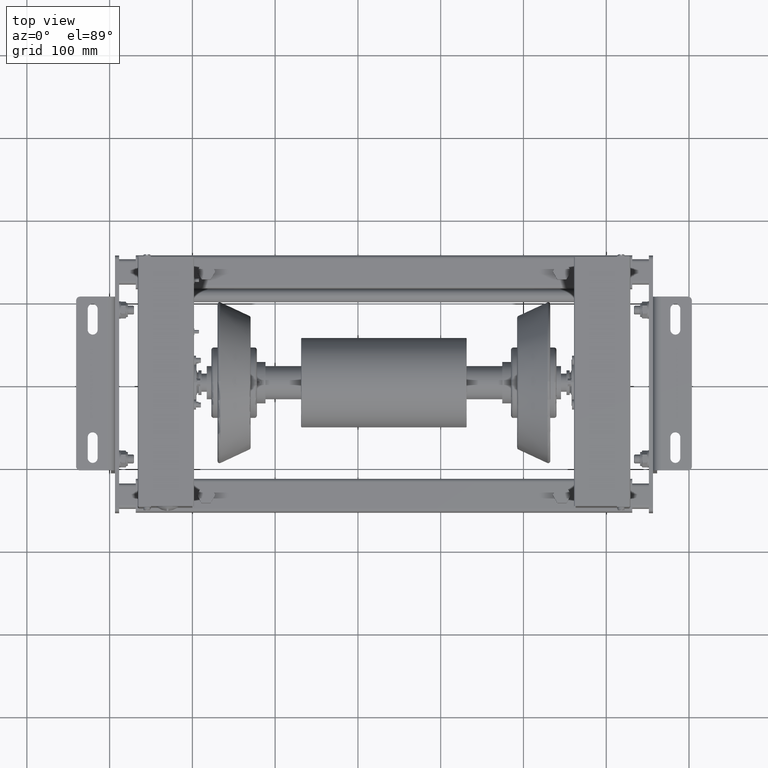
[diagram: clean part render]
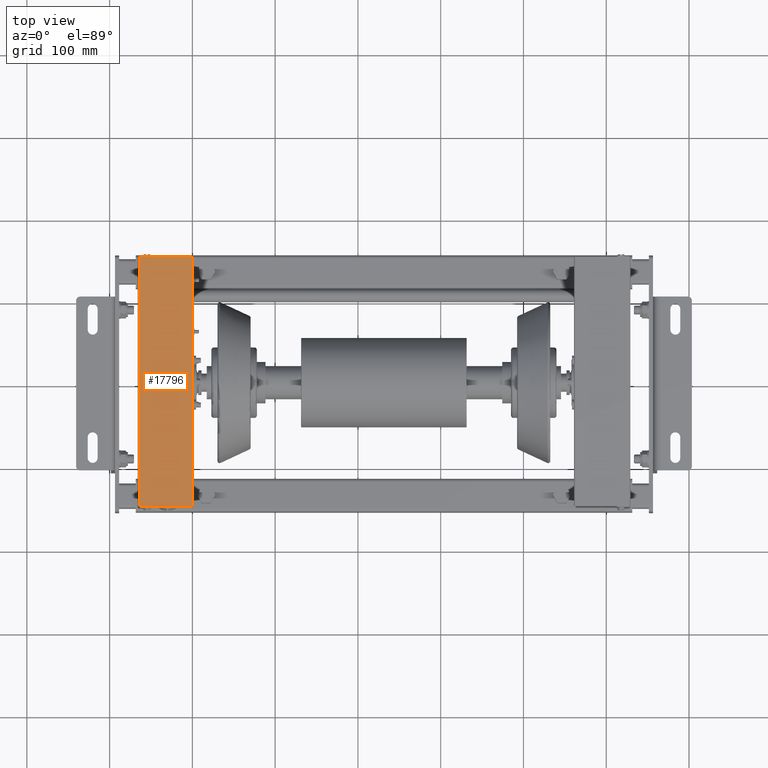
[diagram: same view with one face highlighted and labeled with its STEP entity id]
A machine part, top view. The second image highlights one B-rep face of the part: STEP entity #17796.
In plain terms, the highlighted planar face has unit normal (0, 0, 1).
Its self-contained STEP definition (entity closure, byte-faithful):
#17132=CARTESIAN_POINT('',(-90.500000000000000,86.500000000000000,65.500000000000000));
#17133=VERTEX_POINT('',#17132);
#17141=CARTESIAN_POINT('',(-90.500000000000000,86.500000000000000,1.500000000000000));
#17142=VERTEX_POINT('',#17141);
#17143=CARTESIAN_POINT('',(-90.500000000000000,86.500000000000000,1.500000000000000));
#17144=DIRECTION('',(0.0,0.0,1.0));
#17145=VECTOR('',#17144,64.0);
#17146=LINE('',#17143,#17145);
#17147=EDGE_CURVE('',#17142,#17133,#17146,.T.);
#17302=CARTESIAN_POINT('',(210.500000000000110,86.499999999999829,1.500000000000000));
#17303=VERTEX_POINT('',#17302);
#17311=CARTESIAN_POINT('',(210.500000000000110,86.499999999999829,65.500000000000000));
#17312=VERTEX_POINT('',#17311);
#17313=CARTESIAN_POINT('',(210.500000000000110,86.499999999999829,1.500000000000000));
#17314=DIRECTION('',(0.0,0.0,1.0));
#17315=VECTOR('',#17314,64.0);
#17316=LINE('',#17313,#17315);
#17317=EDGE_CURVE('',#17303,#17312,#17316,.T.);
#17692=CARTESIAN_POINT('',(-90.500000000000000,86.500000000000000,1.500000000000000));
#17693=DIRECTION('',(1.0,0.0,0.0));
#17694=VECTOR('',#17693,301.000000000000110);
#17695=LINE('',#17692,#17694);
#17696=EDGE_CURVE('',#17142,#17303,#17695,.T.);
#17780=CARTESIAN_POINT('',(-90.500000000000000,86.500000000000000,-0.500000000000000));
#17781=DIRECTION('',(0.0,1.0,0.0));
#17782=DIRECTION('',(0.0,0.0,1.0));
#17783=AXIS2_PLACEMENT_3D('',#17780,#17781,#17782);
#17784=PLANE('',#17783);
#17785=ORIENTED_EDGE('',*,*,#17696,.F.);
#17786=ORIENTED_EDGE('',*,*,#17147,.T.);
#17787=CARTESIAN_POINT('',(210.500000000000110,86.499999999999829,65.500000000000000));
#17788=DIRECTION('',(-1.0,0.0,0.0));
#17789=VECTOR('',#17788,301.000000000000110);
#17790=LINE('',#17787,#17789);
#17791=EDGE_CURVE('',#17312,#17133,#17790,.T.);
#17792=ORIENTED_EDGE('',*,*,#17791,.F.);
#17793=ORIENTED_EDGE('',*,*,#17317,.F.);
#17794=EDGE_LOOP('',(#17785,#17786,#17792,#17793));
#17795=FACE_OUTER_BOUND('',#17794,.T.);
#17796=ADVANCED_FACE('',(#17795),#17784,.T.);